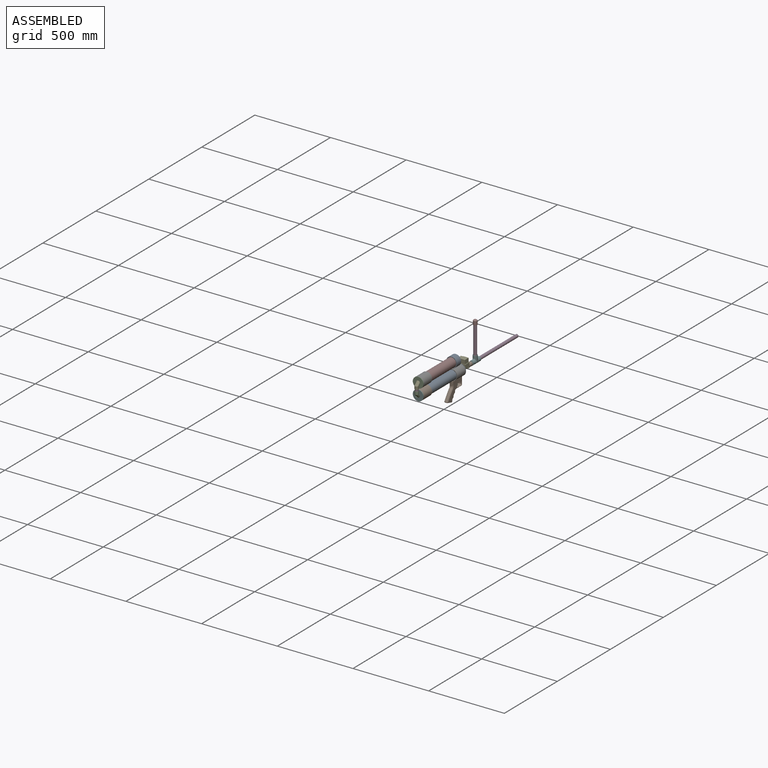
[diagram: assembled view]
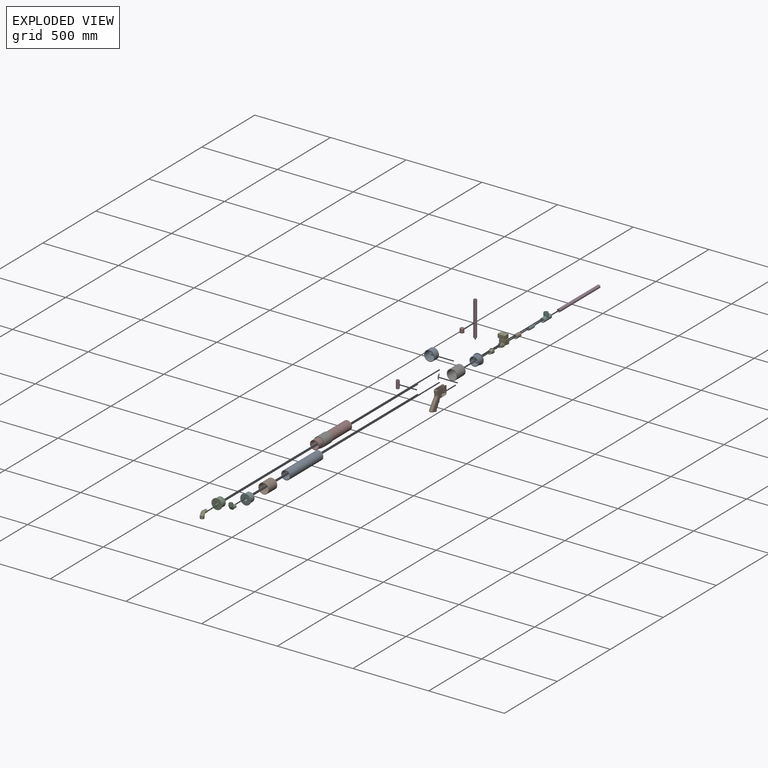
[diagram: exploded view]
GUIDED TOUR — MATED ASSEMBLY WITH SUBASSEMBLIES (Onshape document 58dd89611a7a290f81dffc46, AutoMate assembly 58dd89611a7a290f81dffc46_14fd3d186b81d240e03e2651_4bc097a1789fc63d27f42b45_default)

This assembly has 25 component occurrences arranged in 22 top-level units: 21 individual components plus 1 subassembly (S0). The tour has two levels: first the top level, where each subassembly is treated as one rigid unit; then each subassembly is toured internally in its own section (nesting deeper than one subassembly level is flattened into its subassembly's section).

Components are labeled P0..P24 across the whole record; subassembly units are labeled S0..S0. A mate is a constraint between two units; its type names the relative motion it leaves free:
  FASTENED — locks the two components together rigidly (no relative motion),
  PLANAR — leaves sliding in the plane through the listed point (normal = the listed direction) and rotation about that normal free,
  REVOLUTE — leaves rotation about the listed axis free (a hinge).
Axis/direction vectors are unit vectors and 'through' points are millimeter coordinates, both in the assembly's world frame.

TOP-LEVEL MATES (between units; each subassembly's internal mates are listed in its own section)
  1. FASTENED "Valve Coupler Fastener": P20 <-> S0, direction (0.000, -1.000, 0.000) through (-5.48, 219.71, -12.74) mm
  2. FASTENED "Coupler Fasten": P10 <-> P9, direction (0.000, 1.000, 0.000) through (-5.48, -190.03, -12.74) mm
  3. FASTENED "1/2" Reducer Fasten": P5 <-> P10, direction (0.000, 1.000, 0.000) through (-5.48, -232.09, -12.74) mm
  4. FASTENED "Bottom Elbow Tank Fastener": P21 <-> P5, direction (0.000, 1.000, 0.000) through (-5.48, -235.90, -12.74) mm
  5. FASTENED "Main Grip Fasten": P1 <-> P6, direction (0.000, 1.000, 0.000) through (4.52, 163.19, -44.74) mm
  6. FASTENED "Rear Cap Fasten": P19 <-> P8, direction (0.000, 1.000, 0.000) through (-5.48, 121.12, 63.46) mm
  7. FASTENED "Barrel1 Tee Fastener": P24 <-> P15, direction (0.000, 1.000, 0.000) through (-5.48, 289.56, -12.74) mm
  8. FASTENED "Tank Connector Fastener": P12 <-> P23, direction (0.000, 0.000, 1.000) through (-5.48, -248.60, 50.76) mm
  9. FASTENED "1/2" Reducer Fasten": P2 <-> P16, direction (0.000, 1.000, 0.000) through (-5.48, -232.09, 63.46) mm
  10. FASTENED "Top Elbow Tank Fastener": P23 <-> P2, direction (0.000, 1.000, 0.000) through (-5.48, -235.90, 63.46) mm
  11. FASTENED "Lower Tank Front Coupler Fasten": P9 <-> P6, direction (0.000, -1.000, 0.000) through (-5.48, 121.12, -12.74) mm
  12. FASTENED "Mag Tee Fastener": P3 <-> P15, direction (0.000, 0.000, -1.000) through (-5.48, 303.53, 1.55) mm
  13. FASTENED "2-3/4 Reducer Fasten": P0 <-> P6, direction (0.000, -1.000, 0.000) through (-5.48, 163.19, -12.74) mm
  14. FASTENED "Valve Tank Fastener": S0 <-> P13, direction (0.000, -1.000, 0.000) through (-5.48, 170.81, -12.74) mm
  15. FASTENED "3/4" reducer tank fastener": P13 <-> P0, direction (0.000, -1.000, 0.000) through (-5.48, 167.00, -12.74) mm
  16. FASTENED "Barrel2 Tee Fastener": P15 <-> P22, direction (0.000, 1.000, 0.000) through (-5.48, 317.50, -12.74) mm
  17. FASTENED "Mag Cap Fastener": P18 <-> P3, direction (0.000, 0.000, 1.000) through (-5.48, 303.53, 230.15) mm
  18. REVOLUTE "Trigger Revolute": P11 <-> P1, axis (1.000, 0.000, 0.000) through (-2.73, 137.19, -70.35) mm
  19. FASTENED "Coupler Fasten": P16 <-> P8, direction (0.000, 1.000, 0.000) through (-5.48, -190.03, 63.46) mm
  20. FASTENED "Barrel Coupler Fastener": P24 <-> P20, direction (0.000, -1.000, 0.000) through (-5.48, 238.76, -12.74) mm

TOP-LEVEL ASSEMBLY ORDER
  1. P6 — the base component [order heuristic]
  2. P0 — core [order heuristic]
  3. P2 — core [order heuristic]
  4. P23 — core [order heuristic]
  5. P13 — core [order heuristic]
  6. P12 — core [order heuristic]
  7. P16 — core [order heuristic]
  8. P8 — core [order heuristic]
  9. S0 — core [order heuristic]
  10. P20 — core [order heuristic]
  11. P24 — core [order heuristic]
  12. P9 — core [order heuristic]
  13. P15 — core [order heuristic]
  14. P10 — core [order heuristic]
  15. P5 — core [order heuristic]
  16. P21 — core [order heuristic]
  17. P1 [order verified]
  18. P11 [order verified]
  19. P3 [order verified]
  20. P19 [order verified]
  21. P18 [order verified]
  22. P22 [order verified]
(P11 verified with a relaxed clearance tolerance: the source model stores slight part interference there.)
Order-tag legend:
  [order verified] — this step's position reverses a verified removal order: the component was checked to insert without passing through the ones already placed.
  [order heuristic] — the first 16 components form the assembly's core: parts whose collision-free extraction could not be verified, listed in mate-graph order.

Of the 25 component occurrences, 5 carry the full construction recipe — the FeatureScript program that regenerates the part's solid from scratch; the rest are supplied as boundary geometry only. Each toured unit is shown spotlighted twice — assembled, then exploded with a leader line back to its socket (green = recipe-attached component, orange = geometry-only, blue = subassembly unit; the rest desaturated gray).
NOTE — document 2 of 2 of this assembly tour. The two overview renders and the header above are repeated from document 1; the component sections below continue where the previous document stopped.
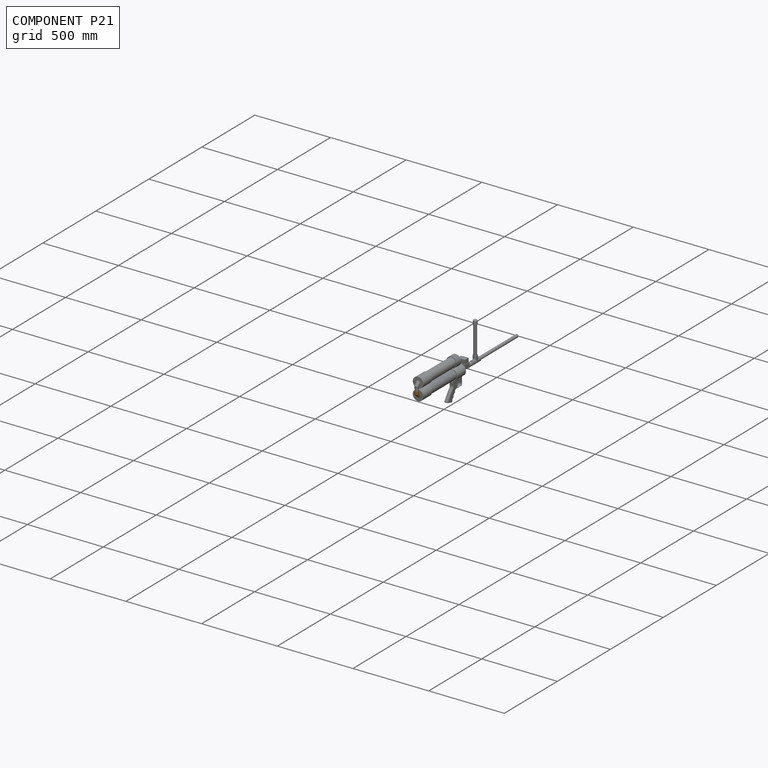
[diagram: component P21 — assembled]
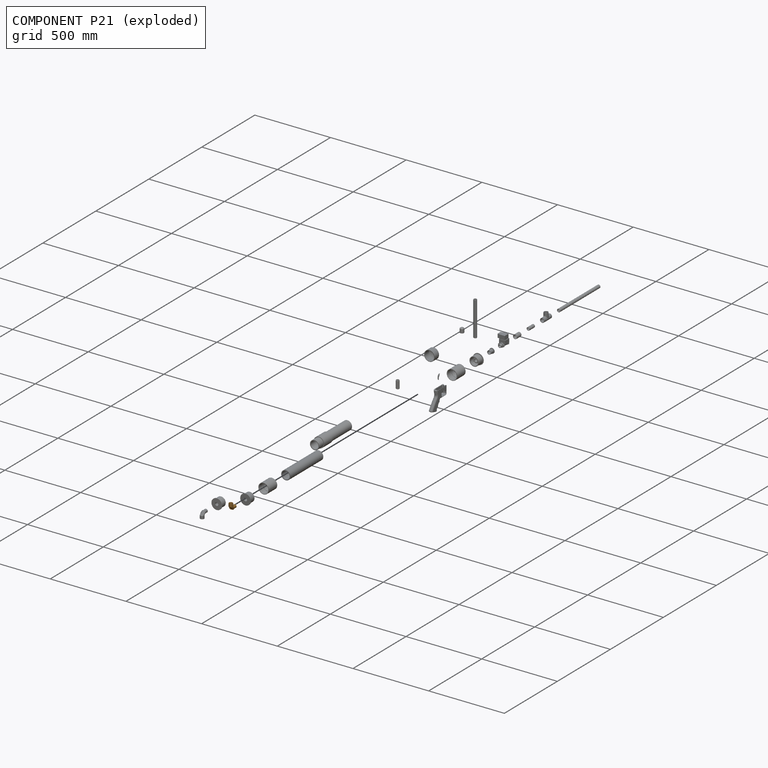
[diagram: component P21 — exploded]
COMPONENT P21 — geometry summary (no construction recipe available for this part):
  bounding box: 52.9 x 46.5 x 25.4 mm
  B-rep topology: 1 solid, 11 faces, 36 edges
  volume: 11736 mm^3 (19% of its bounding box)
  symmetry: mirror-symmetric across its y mid-plane
Held by: FASTENED mate "Bottom Elbow Tank Fastener" to P5.
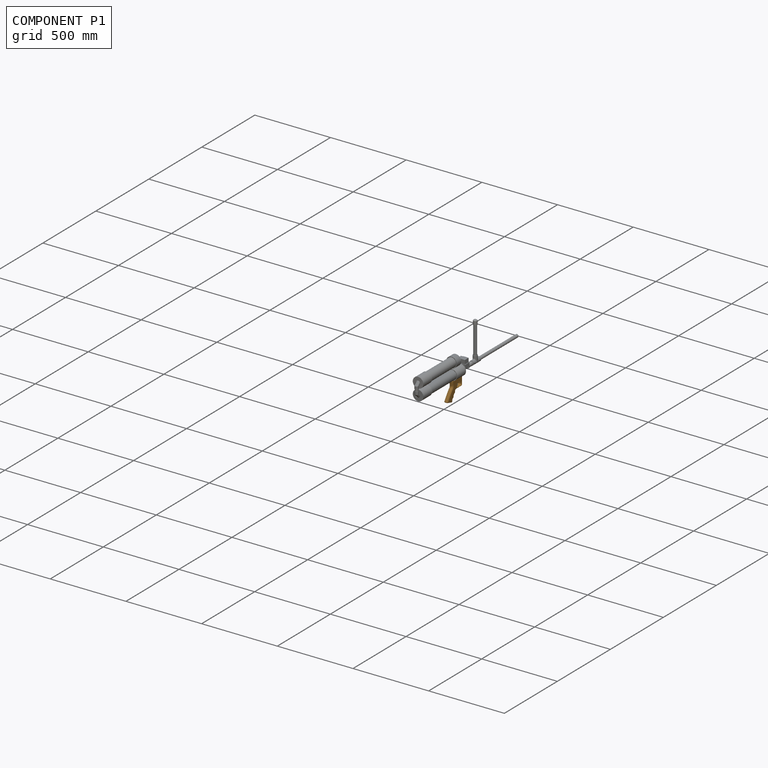
[diagram: component P1 — assembled]
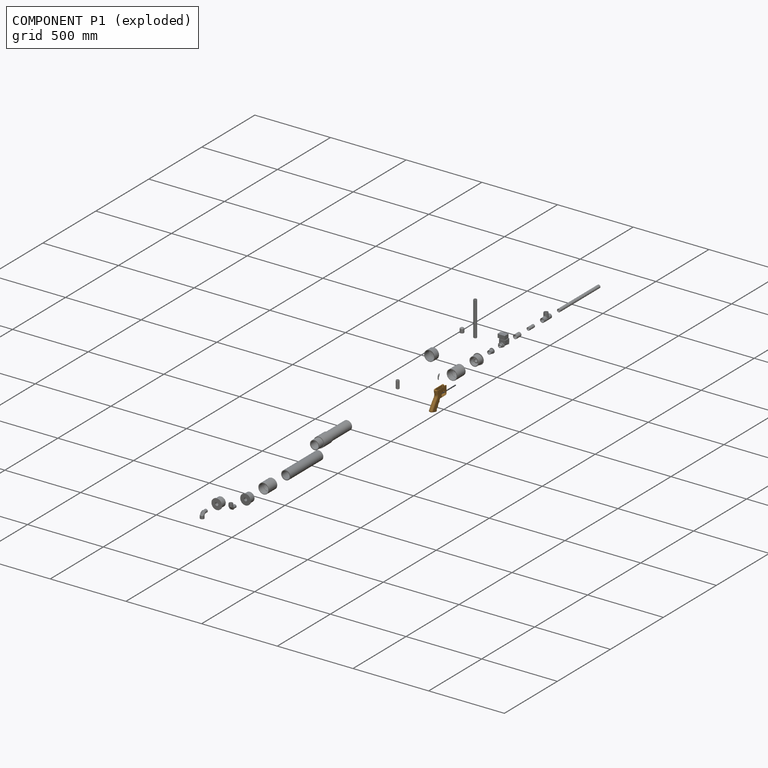
[diagram: component P1 — exploded]
COMPONENT P1 — geometry summary (no construction recipe available for this part):
  bounding box: 142.7 x 127.3 x 31.0 mm
  B-rep topology: 1 solid, 213 faces, 1120 edges
  volume: 133265 mm^3 (24% of its bounding box)
Held by: FASTENED mate "Main Grip Fasten" to P6; REVOLUTE mate "Trigger Revolute" to P11.
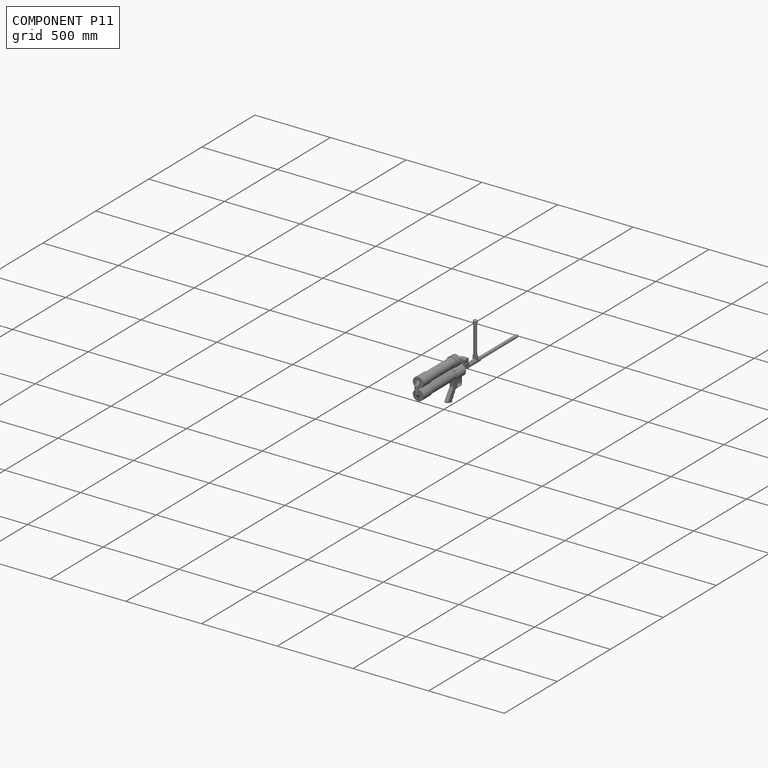
[diagram: component P11 — assembled]
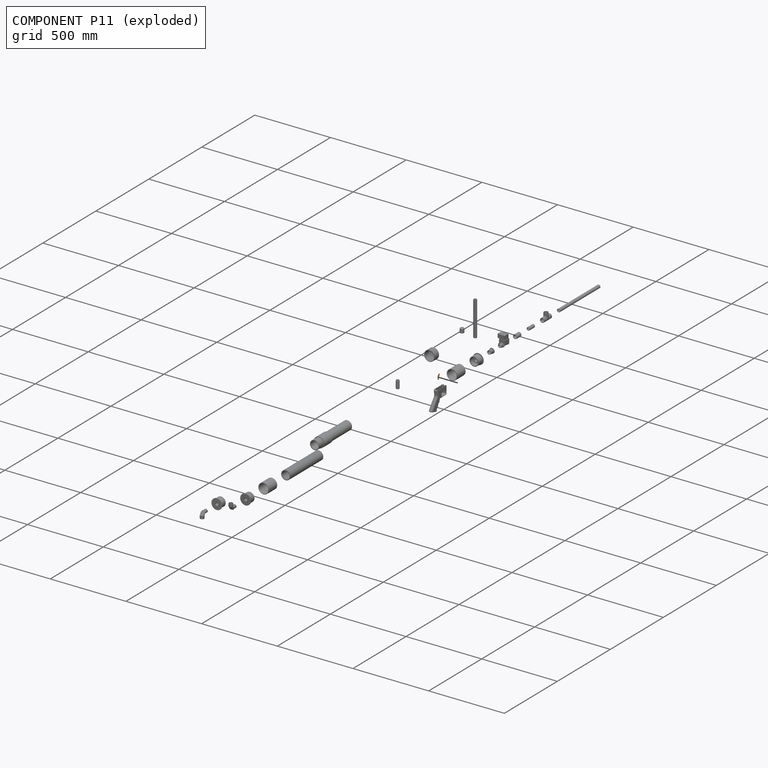
[diagram: component P11 — exploded]
COMPONENT P11 — geometry summary (no construction recipe available for this part):
  bounding box: 37.2 x 15.1 x 6.2 mm
  B-rep topology: 1 solid, 38 faces, 172 edges
  volume: 912 mm^3 (26% of its bounding box)
  symmetry: mirror-symmetric across its z mid-plane
Held by: REVOLUTE mate "Trigger Revolute" to P1.
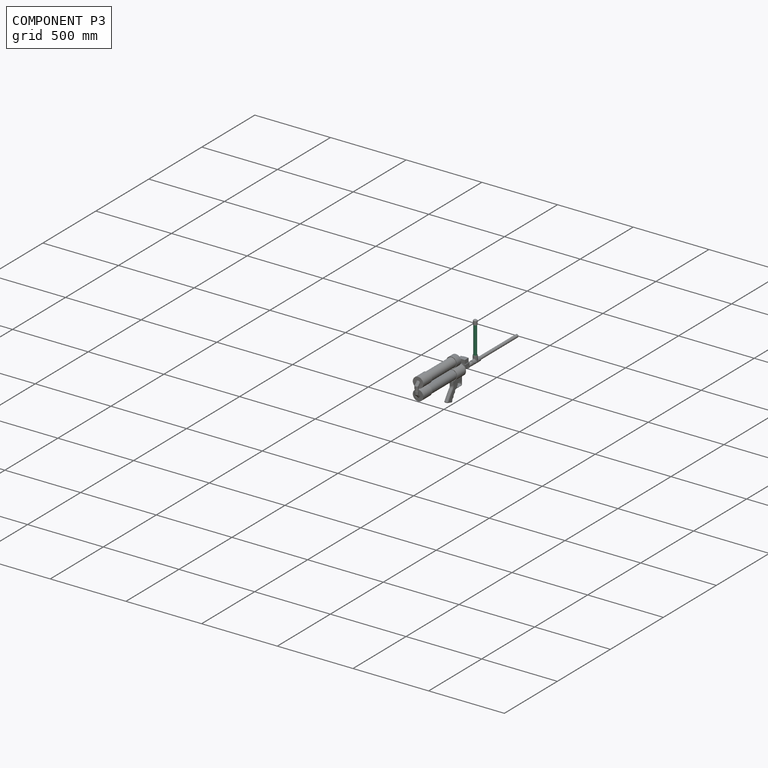
[diagram: component P3 — assembled]
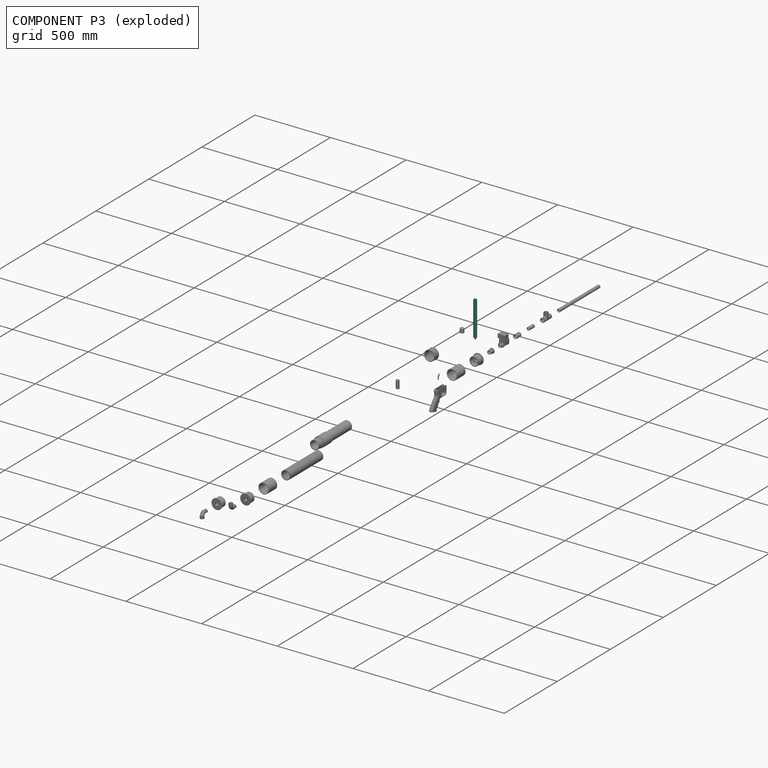
[diagram: component P3 — exploded]
COMPONENT P3 — recipe-attached (CADFS 00665279, mesh-verified: the recipe's output STEP matches this component's geometry to below the mesh-comparison resolution (tessellation chordal tolerance ~0.346 mm)).
Held by: FASTENED mate "Mag Tee Fastener" to P15; FASTENED mate "Mag Cap Fastener" to P18.
Construction recipe (FeatureScript — the CAD program that rebuilds this solid; sketch coordinates are in the units given by the * unit suffixes, e.g. mm):

FeatureScript 1511;
import(path : "onshape/std/geometry.fs", version : "1511.0");
import(path : "onshape/std/common.fs", version : "1511.0");
const mm = millimeter;
const VERTEX = EntityType.VERTEX;
const EDGE = EntityType.EDGE;
const FACE = EntityType.FACE;
const BODY = EntityType.BODY;
function v(x, y){return vector(x, y);}
function OD(order){return orderDisambiguation(order);}
function OSD(set){return originalSetDisambiguation(set);}
function TD(topology){return topologyDisambiguation(topology);}
function TDD(query){return trueDependencyDisambiguation(query);}
function sQuery(a, b, c) {return sketchEntityQuery(a, b, c);}

annotation { "Feature Type Name" : "Feature", "Feature Type Description" : "" }
export const myFeature = defineFeature(function(context is Context, id is Id, definition is map)
    precondition{}
    {
        {
            var Q0;
            Q0=qCreatedBy(makeId("Top.planeOp"),FACE);
            var sketch = newSketch(context, id + "F0", { "sketchPlane" : qUnion([Q0])});
            skCircle(sketch, "E0", {"center": v(0, 0) * mm, "radius": 10.48 * mm});
            skCircle(sketch, "E1", {"center": v(0, 0) * mm, "radius": 7.5 * mm});
            skSolve(sketch);
        }
        {
            var Q0;
            Q0=makeQuery(id+"F0.imprint","IMPRINT",FACE,{"disambiguationData":[TD([[makeQuery(id+"F0.imprint","IMPRINT",EDGE,{"derivedFrom":sQuery(id+"F0.wireOp",EDGE,"E0")}),1.0]])]});
            extrude(context, id + "F1", {"entities" : qUnion([Q0]), "depth" : 228.6 * mm, "offsetDistance" : 25 * mm});
        }
        {
            var Q0;
            Q0=makeQuery(id+"F1.opExtrude","SWEPT_FACE",FACE,{"disambiguationData":[OSD([sQuery(id+"F0.wireOp",EDGE,"E0")])]});
            chamfer(context, id + "F2", {"entities" : qUnion([Q0]), "width" : 0.64 * mm, "tangentPropagation" : true});
        }
    });
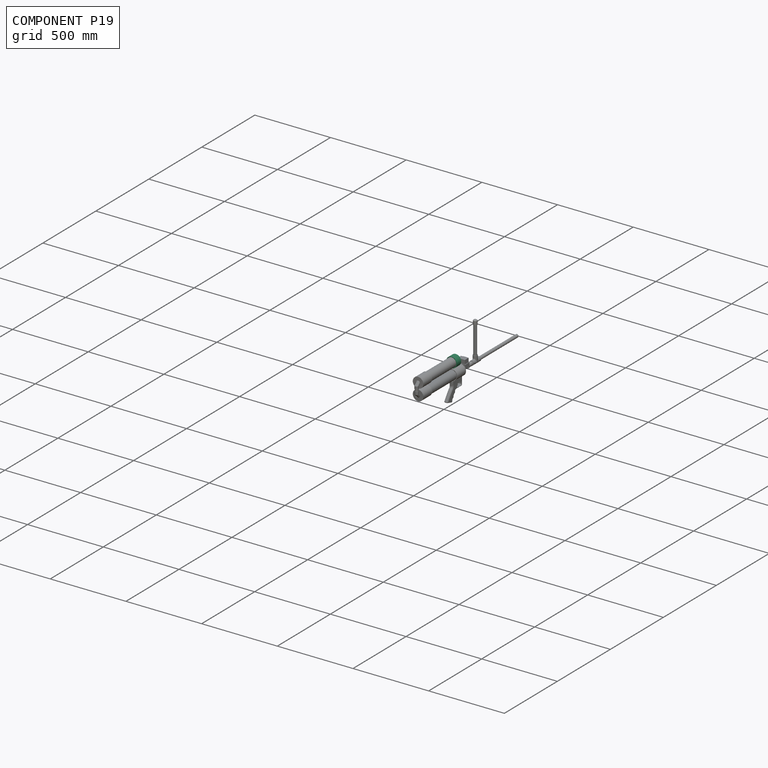
[diagram: component P19 — assembled]
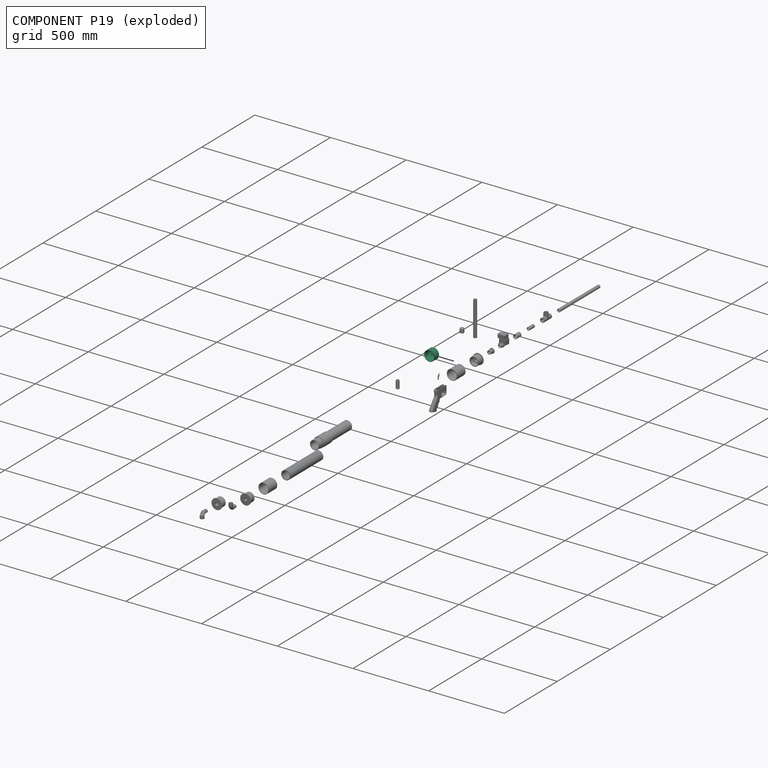
[diagram: component P19 — exploded]
COMPONENT P19 — recipe-attached (CADFS 00665281, mesh-verified: the recipe's output STEP matches this component's geometry to below the mesh-comparison resolution (tessellation chordal tolerance ~0.169 mm)).
Held by: FASTENED mate "Rear Cap Fasten" to P8.
Construction recipe (FeatureScript — the CAD program that rebuilds this solid; sketch coordinates are in the units given by the * unit suffixes, e.g. mm):

FeatureScript 1511;
import(path : "onshape/std/geometry.fs", version : "1511.0");
import(path : "onshape/std/common.fs", version : "1511.0");
const mm = millimeter;
const VERTEX = EntityType.VERTEX;
const EDGE = EntityType.EDGE;
const FACE = EntityType.FACE;
const BODY = EntityType.BODY;
function v(x, y){return vector(x, y);}
function OD(order){return orderDisambiguation(order);}
function OSD(set){return originalSetDisambiguation(set);}
function TD(topology){return topologyDisambiguation(topology);}
function TDD(query){return trueDependencyDisambiguation(query);}
function sQuery(a, b, c) {return sketchEntityQuery(a, b, c);}

annotation { "Feature Type Name" : "Feature", "Feature Type Description" : "" }
export const myFeature = defineFeature(function(context is Context, id is Id, definition is map)
    precondition{}
    {
        {
            var Q0;
            Q0=qCreatedBy(makeId("Front.planeOp"),FACE);
            var sketch = newSketch(context, id + "F0", { "sketchPlane" : qUnion([Q0])});
            skLineSegment(sketch, "E0", {"start": v(0, 133.2) * mm, "end": v(0, -97.05) * mm, "construction": true});
            skLineSegment(sketch, "E1.bottom", {"start": v(30.16, 0) * mm, "end": v(34.86, 0) * mm});
            skLineSegment(sketch, "E1.top", {"start": v(30.16, 41.91) * mm, "end": v(34.86, 41.91) * mm});
            skLineSegment(sketch, "E1.left", {"start": v(30.16, 0) * mm, "end": v(30.16, 41.9) * mm});
            skLineSegment(sketch, "E1.right", {"start": v(34.86, 0) * mm, "end": v(34.86, 41.9) * mm});
            skArc(sketch, "E2", {"start": v(34.86, 41.9) * mm, "mid": v(18.55, 51.34) * mm, "end": v(0, 54.6) * mm});
            skPoint(sketch, "E3", {"position": v(0, 54.6) * mm});
            skPoint(sketch, "E4", {"position": v(0, -53.78) * mm});
            skArc(sketch, "E5", {"start": v(30.16, 41.9) * mm, "mid": v(15.86, 49.2) * mm, "end": v(0, 51.71) * mm});
            skLineSegment(sketch, "E6", {"start": v(0, 54.6) * mm, "end": v(0, 51.71) * mm});
            skSolve(sketch);
        }
        {
            var Q0;
            Q0=makeQuery(id+"F0.imprint","IMPRINT",FACE,{"disambiguationData":[TD([[makeQuery(id+"F0.imprint","IMPRINT",EDGE,{"derivedFrom":sQuery(id+"F0.wireOp",EDGE,"E1.top")}),1.0]])]});
            var Q1;
            Q1=makeQuery(id+"F0.imprint","IMPRINT",FACE,{"disambiguationData":[TD([[makeQuery(id+"F0.imprint","IMPRINT",EDGE,{"derivedFrom":sQuery(id+"F0.wireOp",EDGE,"E1.bottom")}),1.0]])]});
            var Q2;
            Q2=sQuery(id+"F0.wireOp",EDGE,"E0");
            revolve(context, id + "F1", {"entities" : qUnion([Q0, Q1]), "axis" : qUnion([Q2]), "revolveType" : RevolveType.FULL});
        }
        {
            var Q0;
            Q0=makeQuery(id+"F1.opRevolve","SWEPT_EDGE",EDGE,{"disambiguationData":[OSD([sQuery(id+"F0.wireOp",EDGE,"E1.bottom"),sQuery(id+"F0.wireOp",EDGE,"E1.left")])]});
            fillet(context, id + "F2", {"entities" : qUnion([Q0]), "radius" : 2.54 * mm, "tangentPropagation" : true, "allowEdgeOverflow" : false});
        }
    });
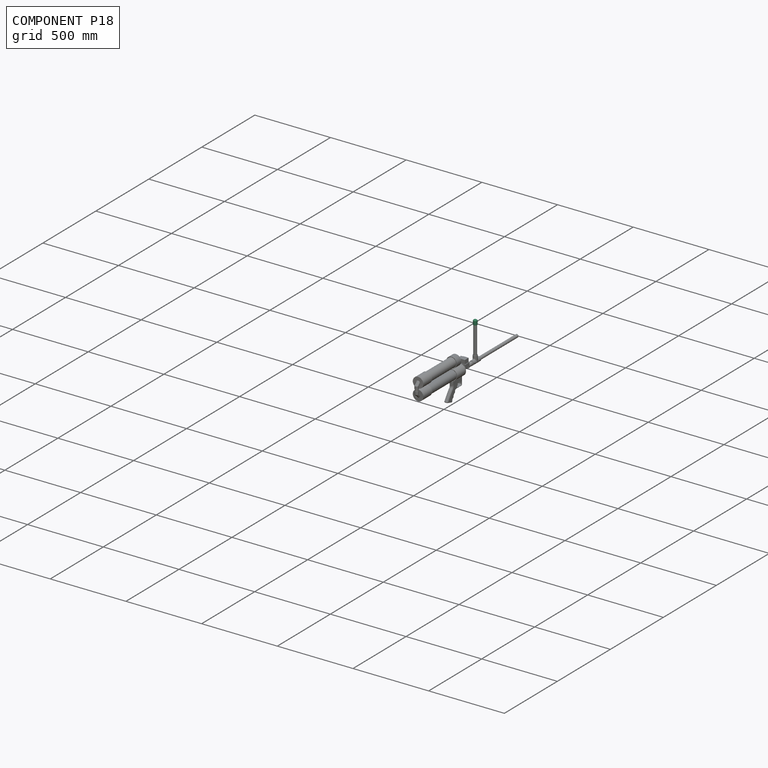
[diagram: component P18 — assembled]
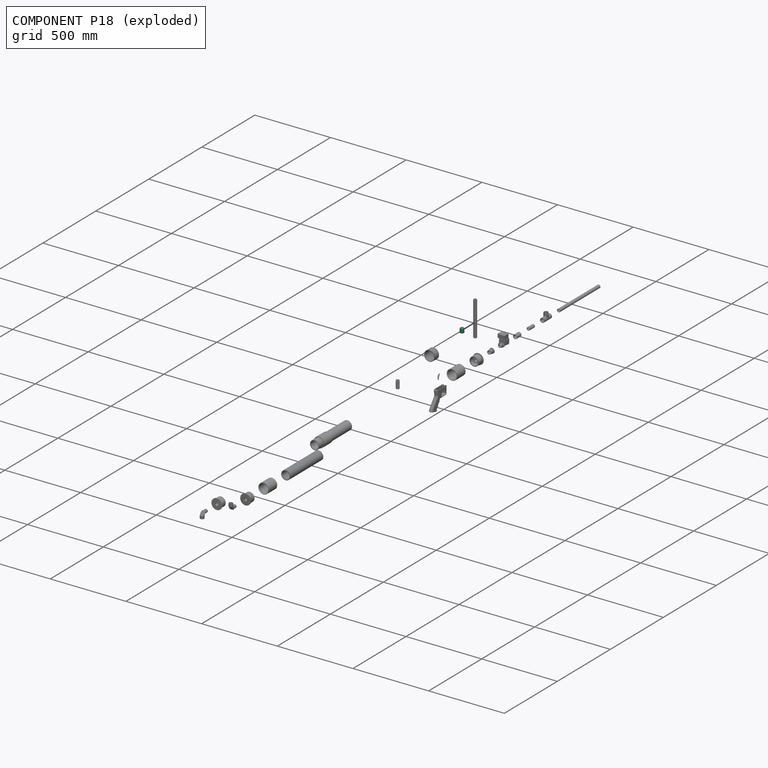
[diagram: component P18 — exploded]
COMPONENT P18 — recipe-attached (CADFS 00665282, mesh-verified: the recipe's output STEP matches this component's geometry to below the mesh-comparison resolution (tessellation chordal tolerance ~0.0723 mm)).
Held by: FASTENED mate "Mag Cap Fastener" to P3.
Construction recipe (FeatureScript — the CAD program that rebuilds this solid; sketch coordinates are in the units given by the * unit suffixes, e.g. mm):

FeatureScript 1511;
import(path : "onshape/std/geometry.fs", version : "1511.0");
import(path : "onshape/std/common.fs", version : "1511.0");
const mm = millimeter;
const VERTEX = EntityType.VERTEX;
const EDGE = EntityType.EDGE;
const FACE = EntityType.FACE;
const BODY = EntityType.BODY;
function v(x, y){return vector(x, y);}
function OD(order){return orderDisambiguation(order);}
function OSD(set){return originalSetDisambiguation(set);}
function TD(topology){return topologyDisambiguation(topology);}
function TDD(query){return trueDependencyDisambiguation(query);}
function sQuery(a, b, c) {return sketchEntityQuery(a, b, c);}

annotation { "Feature Type Name" : "Feature", "Feature Type Description" : "" }
export const myFeature = defineFeature(function(context is Context, id is Id, definition is map)
    precondition{}
    {
        {
            var Q0;
            Q0=qCreatedBy(makeId("Front.planeOp"),FACE);
            var sketch = newSketch(context, id + "F0", { "sketchPlane" : qUnion([Q0])});
            skLineSegment(sketch, "E0", {"start": v(0, 133.2) * mm, "end": v(0, -97.05) * mm, "construction": true});
            skLineSegment(sketch, "E1.bottom", {"start": v(10.48, 0) * mm, "end": v(12.83, 0) * mm});
            skLineSegment(sketch, "E1.top", {"start": v(10.48, 25.4) * mm, "end": v(12.83, 25.4) * mm});
            skLineSegment(sketch, "E1.left", {"start": v(10.48, 0) * mm, "end": v(10.48, 25.4) * mm});
            skLineSegment(sketch, "E1.right", {"start": v(12.83, 0) * mm, "end": v(12.83, 25.4) * mm});
            skArc(sketch, "E2", {"start": v(12.83, 25.4) * mm, "mid": v(7.16, 30.08) * mm, "end": v(0, 31.75) * mm});
            skPoint(sketch, "E3", {"position": v(0, 31.75) * mm});
            skPoint(sketch, "E4", {"position": v(0, -0.51) * mm});
            skArc(sketch, "E5", {"start": v(10.48, 25.4) * mm, "mid": v(5.71, 28.77) * mm, "end": v(0, 29.95) * mm});
            skLineSegment(sketch, "E6", {"start": v(0, 31.75) * mm, "end": v(0, 29.95) * mm});
            skSolve(sketch);
        }
        {
            var Q0;
            Q0=makeQuery(id+"F0.imprint","IMPRINT",FACE,{"disambiguationData":[TD([[makeQuery(id+"F0.imprint","IMPRINT",EDGE,{"derivedFrom":sQuery(id+"F0.wireOp",EDGE,"E1.top")}),1.0]])]});
            var Q1;
            Q1=makeQuery(id+"F0.imprint","IMPRINT",FACE,{"disambiguationData":[TD([[makeQuery(id+"F0.imprint","IMPRINT",EDGE,{"derivedFrom":sQuery(id+"F0.wireOp",EDGE,"E1.bottom")}),1.0]])]});
            var Q2;
            Q2=sQuery(id+"F0.wireOp",EDGE,"E0");
            revolve(context, id + "F1", {"entities" : qUnion([Q0, Q1]), "axis" : qUnion([Q2]), "revolveType" : RevolveType.FULL});
        }
        {
            var Q0;
            Q0=makeQuery(id+"F1.opRevolve","SWEPT_EDGE",EDGE,{"disambiguationData":[OSD([sQuery(id+"F0.wireOp",EDGE,"E1.bottom"),sQuery(id+"F0.wireOp",EDGE,"E1.left")])]});
            fillet(context, id + "F2", {"entities" : qUnion([Q0]), "radius" : 1.27 * mm, "tangentPropagation" : true, "allowEdgeOverflow" : false});
        }
    });
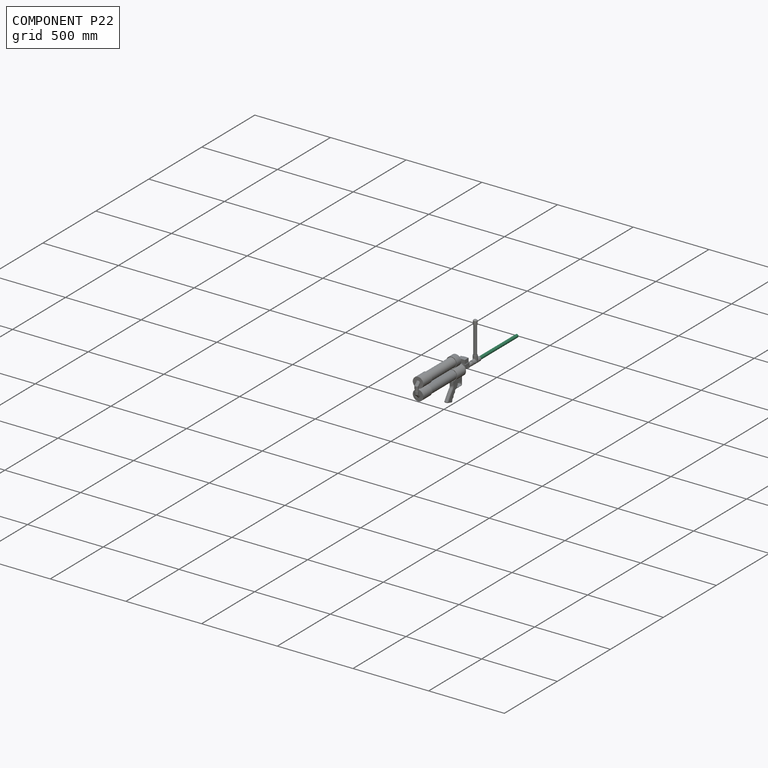
[diagram: component P22 — assembled]
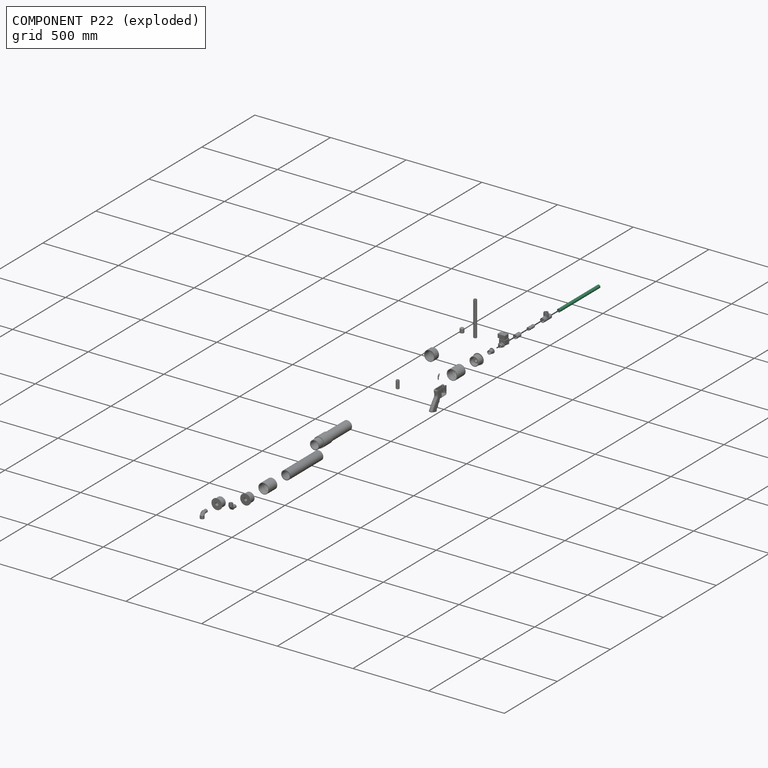
[diagram: component P22 — exploded]
COMPONENT P22 — recipe-attached (CADFS 00665278, mesh-verified: the recipe's output STEP matches this component's geometry to below the mesh-comparison resolution (tessellation chordal tolerance ~0.573 mm)).
Held by: FASTENED mate "Barrel2 Tee Fastener" to P15.
Construction recipe (FeatureScript — the CAD program that rebuilds this solid; sketch coordinates are in the units given by the * unit suffixes, e.g. mm):

FeatureScript 1511;
import(path : "onshape/std/geometry.fs", version : "1511.0");
import(path : "onshape/std/common.fs", version : "1511.0");
const mm = millimeter;
const VERTEX = EntityType.VERTEX;
const EDGE = EntityType.EDGE;
const FACE = EntityType.FACE;
const BODY = EntityType.BODY;
function v(x, y){return vector(x, y);}
function OD(order){return orderDisambiguation(order);}
function OSD(set){return originalSetDisambiguation(set);}
function TD(topology){return topologyDisambiguation(topology);}
function TDD(query){return trueDependencyDisambiguation(query);}
function sQuery(a, b, c) {return sketchEntityQuery(a, b, c);}

annotation { "Feature Type Name" : "Feature", "Feature Type Description" : "" }
export const myFeature = defineFeature(function(context is Context, id is Id, definition is map)
    precondition{}
    {
        {
            var Q0;
            Q0=qCreatedBy(makeId("Top.planeOp"),FACE);
            var sketch = newSketch(context, id + "F0", { "sketchPlane" : qUnion([Q0])});
            skCircle(sketch, "E0", {"center": v(0, 0) * mm, "radius": 10.48 * mm});
            skCircle(sketch, "E1", {"center": v(0, 0) * mm, "radius": 7.5 * mm});
            skSolve(sketch);
        }
        {
            var Q0;
            Q0=makeQuery(id+"F0.imprint","IMPRINT",FACE,{"disambiguationData":[TD([[makeQuery(id+"F0.imprint","IMPRINT",EDGE,{"derivedFrom":sQuery(id+"F0.wireOp",EDGE,"E0")}),1.0]])]});
            extrude(context, id + "F1", {"entities" : qUnion([Q0]), "depth" : 381 * mm, "offsetDistance" : 25 * mm});
        }
        {
            var Q0;
            Q0=makeQuery(id+"F1.opExtrude","SWEPT_FACE",FACE,{"disambiguationData":[OSD([sQuery(id+"F0.wireOp",EDGE,"E0")])]});
            chamfer(context, id + "F2", {"entities" : qUnion([Q0]), "width" : 0.64 * mm, "tangentPropagation" : true});
        }
    });
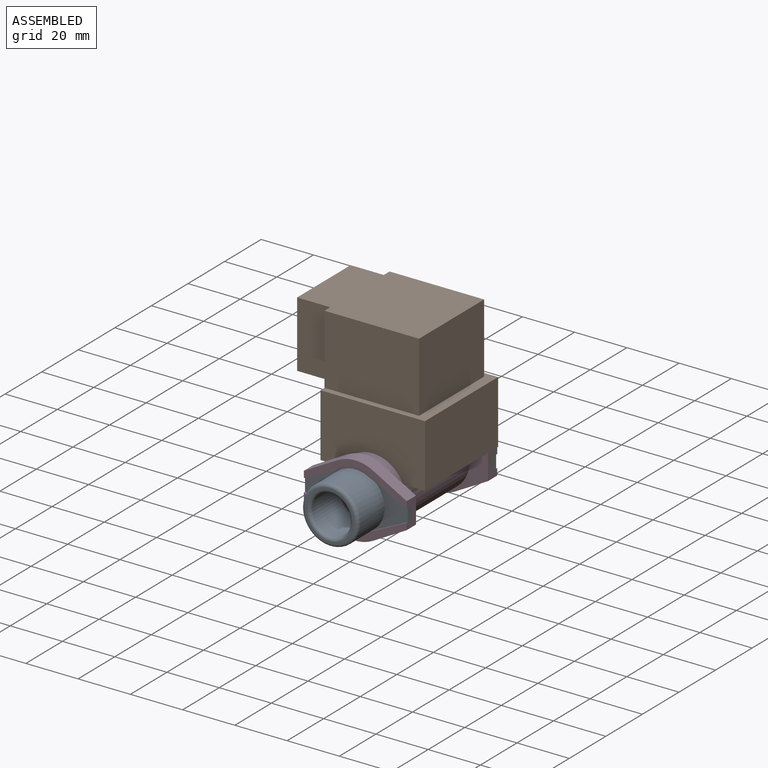
[diagram: subassembly S0 — assembled view]
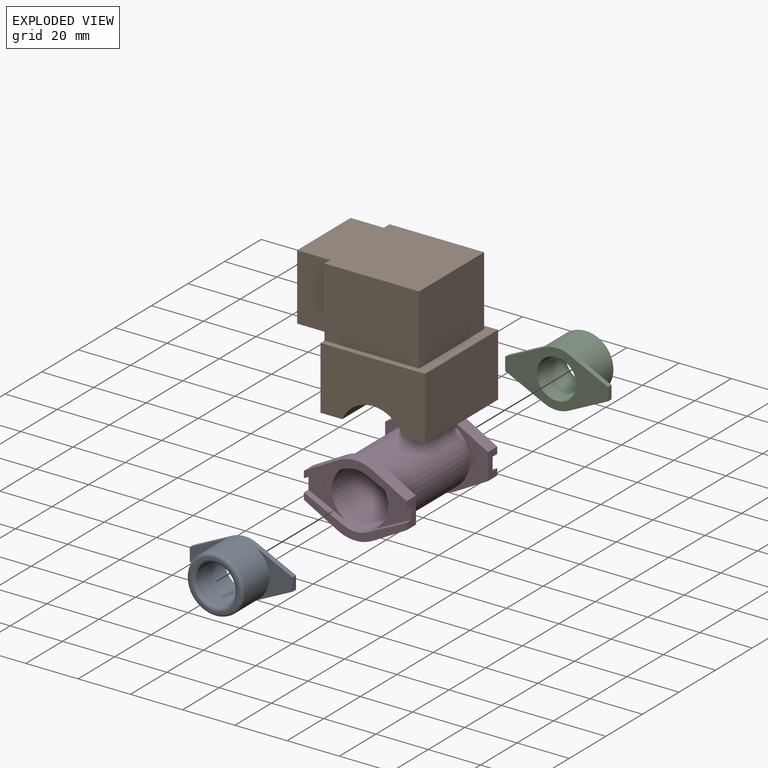
[diagram: subassembly S0 — exploded view]
SUBASSEMBLY S0 TOUR — 4 components, shown here in isolation at its own camera.

INTERNAL MATES
  1. FASTENED "Top Nozzle Fastener": P4 <-> P17, direction (0.000, 1.000, 0.000) through (-5.48, 173.35, -12.74) mm
  2. PLANAR "Box Tube Planar": P7 <-> P17, direction (0.000, 1.000, 0.000) through (-5.48, 215.26, -4.02) mm
  3. FASTENED "Bottom Nozzle Fastener": P14 <-> P17, direction (0.000, -1.000, 0.000) through (-5.48, 217.80, -12.74) mm
  4. FASTENED "Top Nozzle Fastener": P4 <-> P17, direction (0.000, 1.000, 0.000) through (-5.48, 173.35, -12.74) mm
  5. FASTENED "Bottom Nozzle Fastener": P14 <-> P17, direction (0.000, -1.000, 0.000) through (-5.48, 217.80, -12.74) mm
  6. PLANAR "Box Tube Planar": P7 <-> P17, direction (0.000, 1.000, 0.000) through (-5.48, 215.26, -4.02) mm

ASSEMBLY ORDER (within the subassembly)
  1. P17 — the base component [order verified]
  2. P7 [order verified]
  3. P4 [order verified]
  4. P14 [order verified]
(P4, P7, P14 verified with a relaxed clearance tolerance: the source model stores slight part interference there.)
Order-tag legend:
  [order verified] — this step's position reverses a verified removal order: the component was checked to insert without passing through the ones already placed.
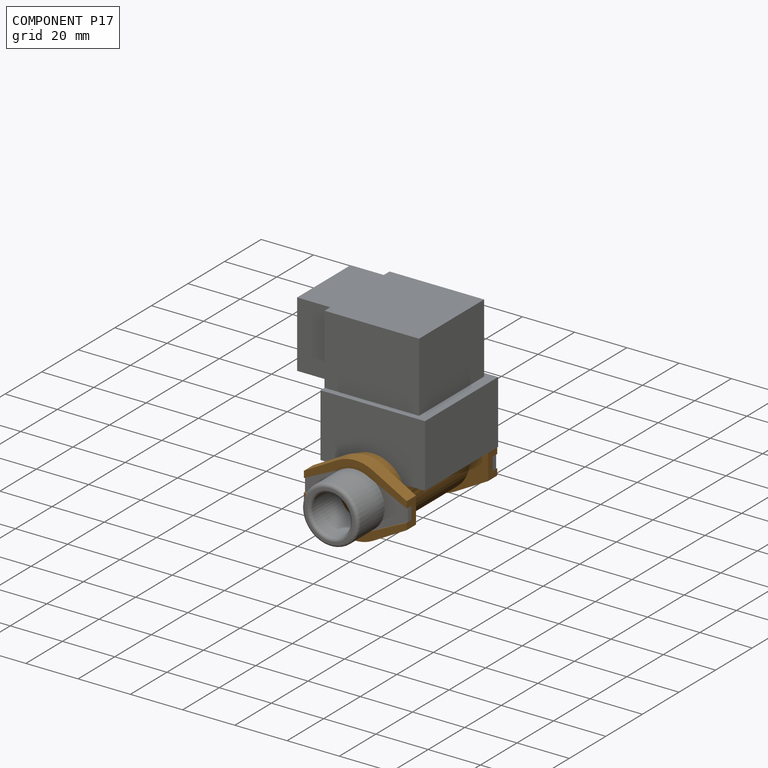
[diagram: component P17 — assembled]
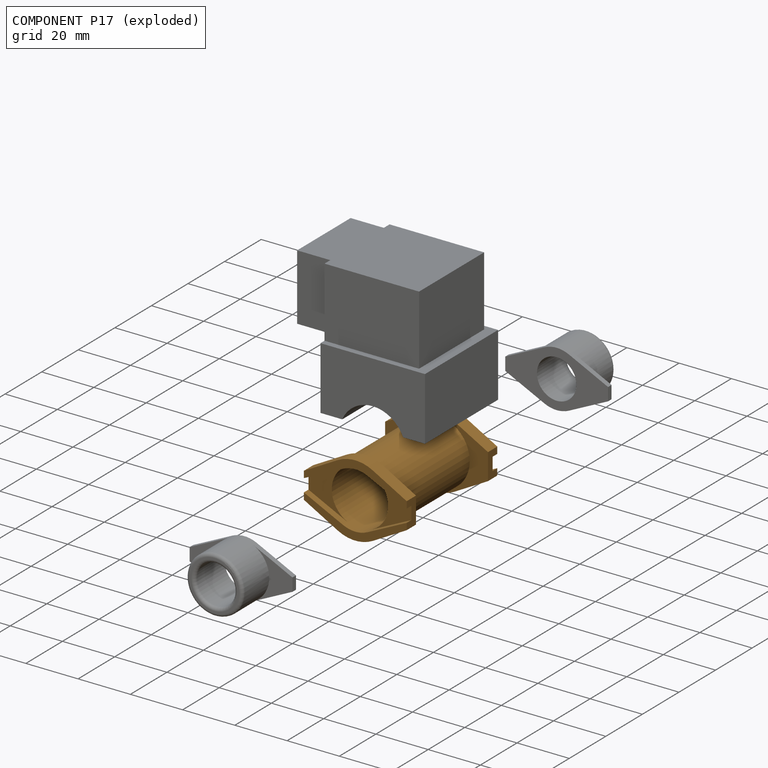
[diagram: component P17 — exploded]
COMPONENT P17 — geometry summary (no construction recipe available for this part):
  bounding box: 49.5 x 39.4 x 27.8 mm
  B-rep topology: 1 solid, 36 faces, 200 edges
  volume: 8996 mm^3 (17% of its bounding box)
  symmetry: 2-fold rotationally symmetric about the x axis; 2-fold rotationally symmetric about the y axis; 2-fold rotationally symmetric about the z axis; mirror-symmetric across its x mid-plane, y mid-plane, z mid-plane
Held by: FASTENED mate "Top Nozzle Fastener" to P4; PLANAR mate "Box Tube Planar" to P7; FASTENED mate "Bottom Nozzle Fastener" to P14; FASTENED mate "Top Nozzle Fastener" to P4; FASTENED mate "Bottom Nozzle Fastener" to P14; PLANAR mate "Box Tube Planar" to P7.
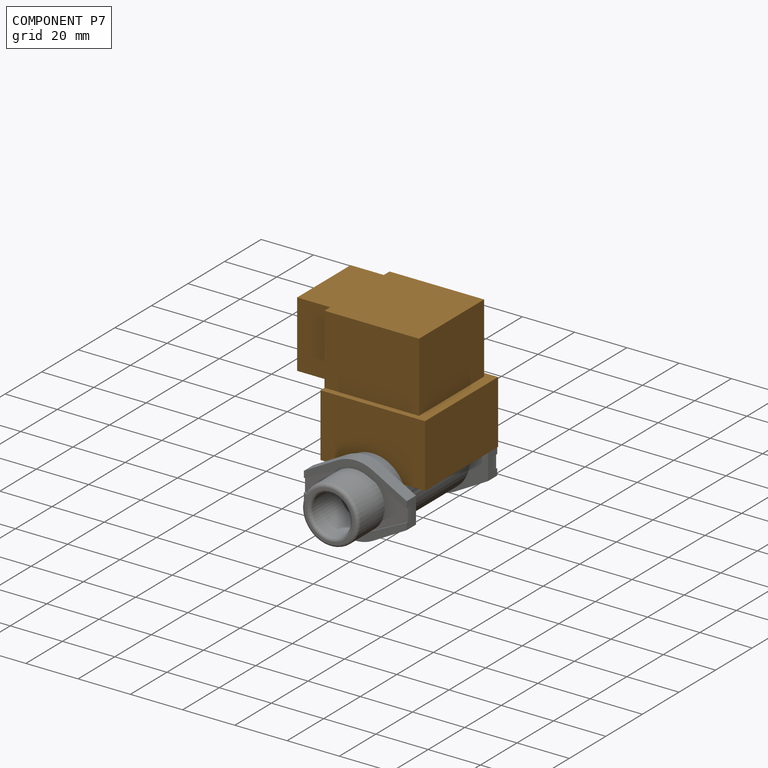
[diagram: component P7 — assembled]
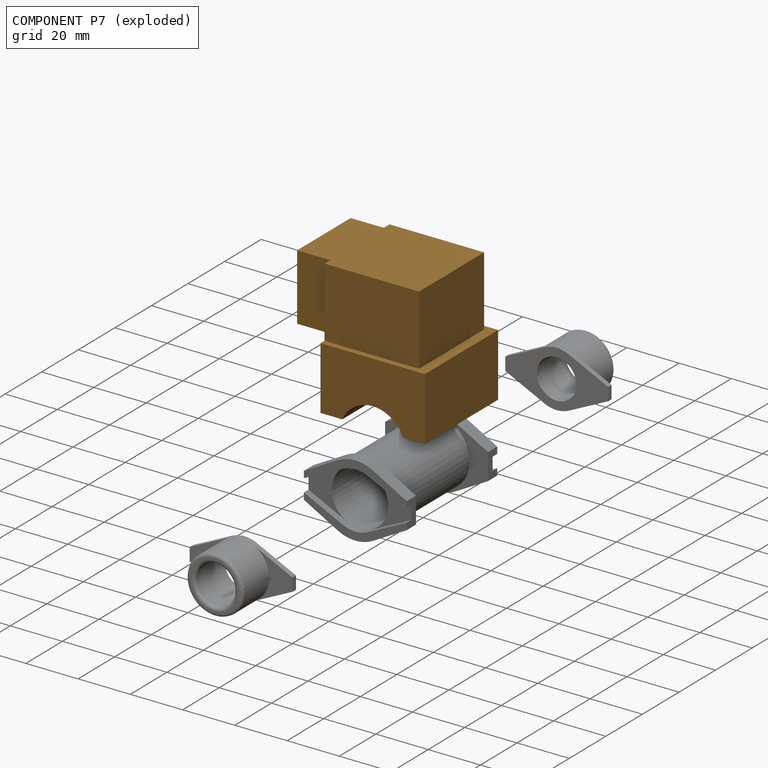
[diagram: component P7 — exploded]
COMPONENT P7 — geometry summary (no construction recipe available for this part):
  bounding box: 52.7 x 50.8 x 40.0 mm
  B-rep topology: 1 solid, 20 faces, 108 edges
  volume: 76826 mm^3 (72% of its bounding box)
Held by: PLANAR mate "Box Tube Planar" to P17; PLANAR mate "Box Tube Planar" to P17.
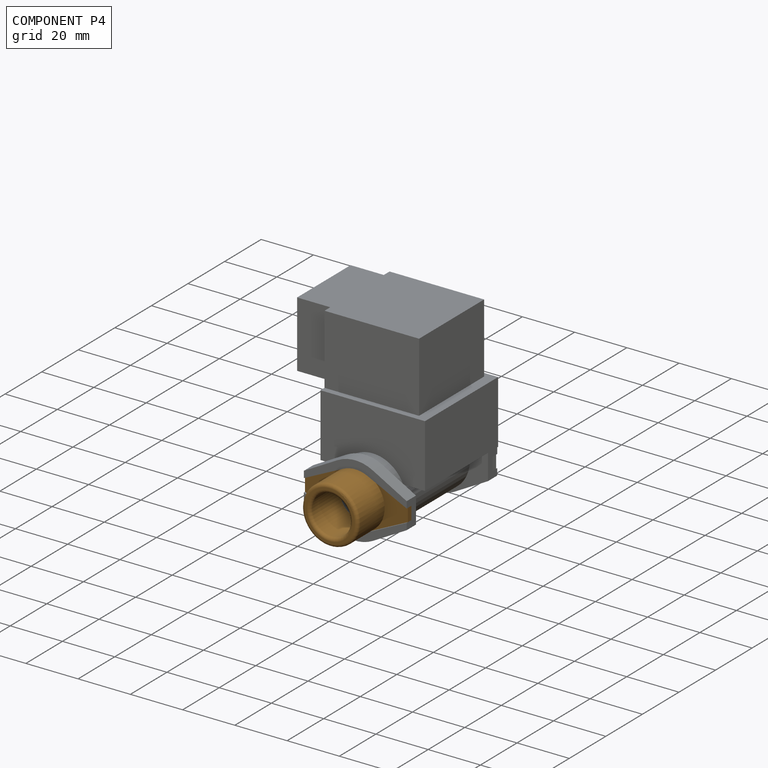
[diagram: component P4 — assembled]
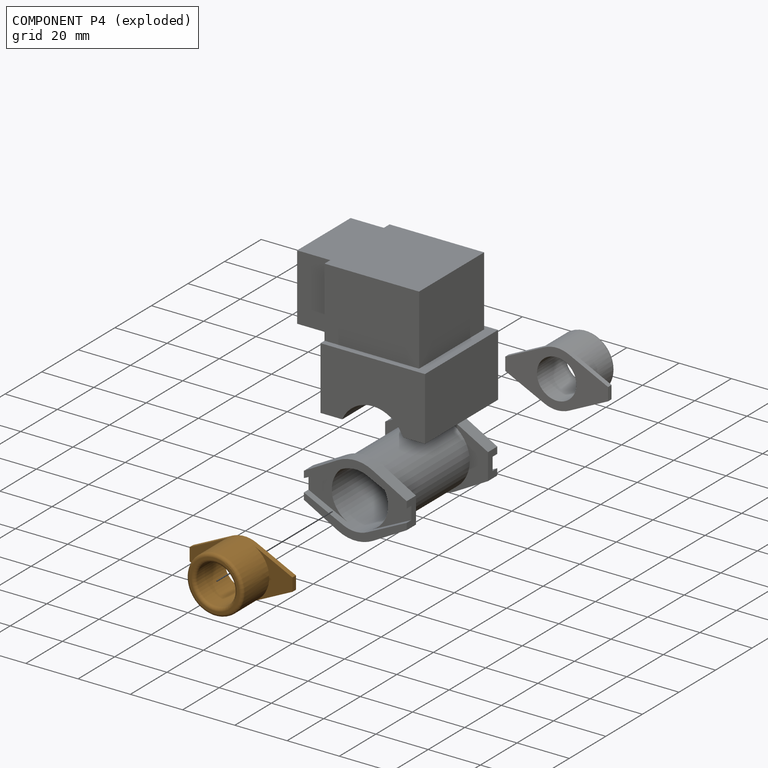
[diagram: component P4 — exploded]
COMPONENT P4 — geometry summary (no construction recipe available for this part):
  bounding box: 39.4 x 23.4 x 16.5 mm
  B-rep topology: 1 solid, 14 faces, 68 edges
  volume: 3415 mm^3 (22% of its bounding box)
  symmetry: 2-fold rotationally symmetric about the z axis; mirror-symmetric across its x mid-plane, y mid-plane
Held by: FASTENED mate "Top Nozzle Fastener" to P17; FASTENED mate "Top Nozzle Fastener" to P17.
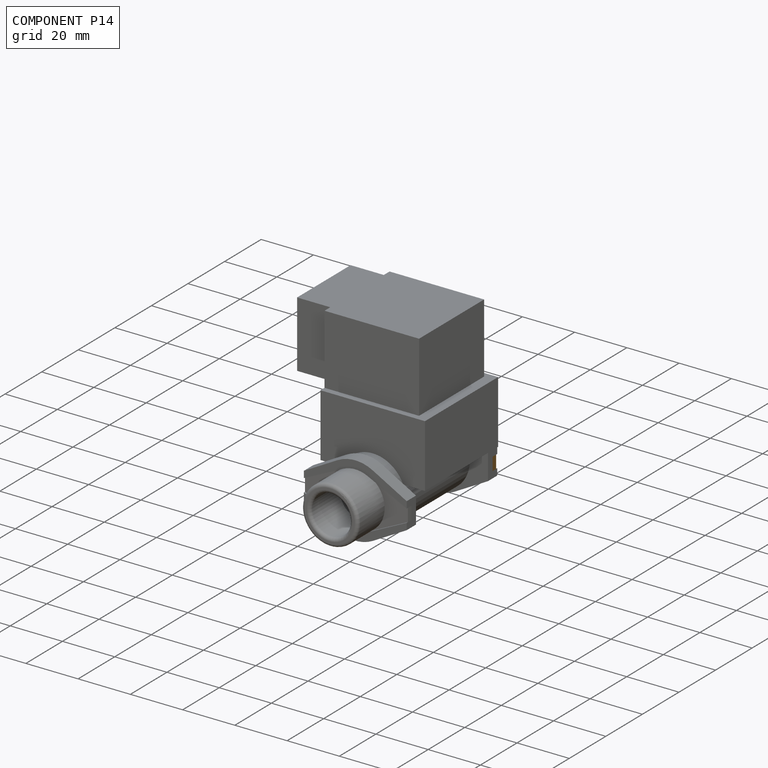
[diagram: component P14 — assembled]
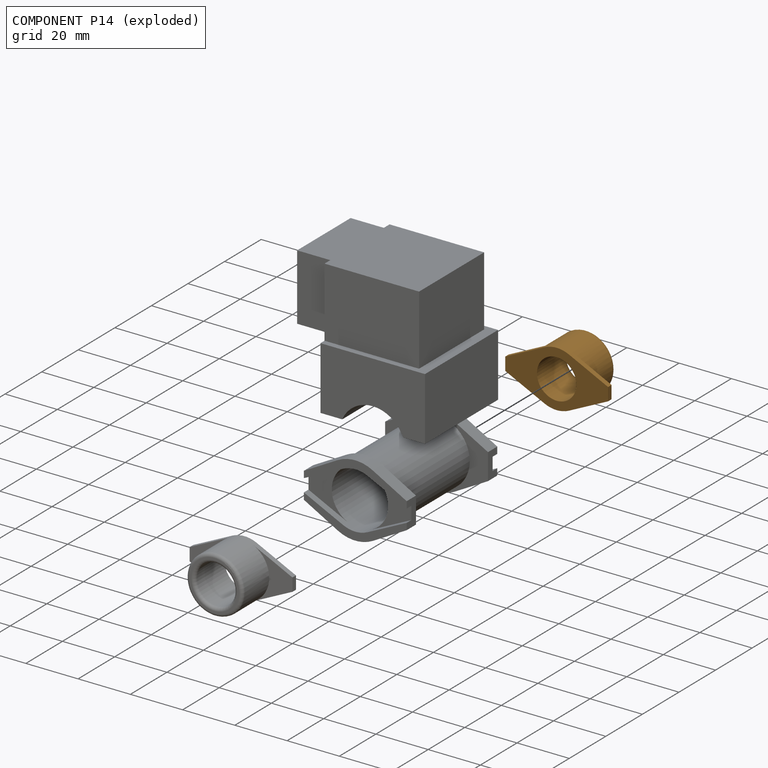
[diagram: component P14 — exploded]
COMPONENT P14 — geometry summary (no construction recipe available for this part):
  bounding box: 39.4 x 23.4 x 16.5 mm
  B-rep topology: 1 solid, 14 faces, 68 edges
  volume: 3415 mm^3 (22% of its bounding box)
  symmetry: 2-fold rotationally symmetric about the z axis; mirror-symmetric across its x mid-plane, y mid-plane
Held by: FASTENED mate "Bottom Nozzle Fastener" to P17; FASTENED mate "Bottom Nozzle Fastener" to P17.
PROVENANCE & LICENSES
Assembly (occurrences, transforms, mates, per-part STEP geometry): AutoMate dataset, Zenodo record 7776208, CC0.
Construction recipes: CADFS (HuggingFace VladPyatov/CADFS, CC-BY-4.0, layered over the ABC dataset), FeatureScript reconstruction programs keyed by ABC model id.
Join: ABC meta listings map ABC model id -> Onshape documentId; within a shared document, parts are matched by geometric signature (bounding-box dims + volume at 0.1% relative tolerance, exact B-rep face/solid counts).
Verification: 5 of this assembly's 25 components carry a recipe attachment, and every attachment is mesh-verified: the CADFS STEP and the AutoMate member STEP were compared as meshes in their shared local frame (symmetric sampled-point-to-mesh distance); worst across the 5 attachments: below the mesh-comparison resolution (tessellation chordal tolerance ~0.573 mm) on a 382 mm part.
Renders: orthographic iso camera (az 35 / el 25); the floor grid conveys scale (grid pitch printed in each image; no ruler). In the exploded view each component is displaced by its stored offset vector: the offsets alone carry the explosion direction (mate normal/axis signs are not orientation cues and do not encode it), and separation distances are assigned per mate-chain, not proportionally to assembly-order depth.
